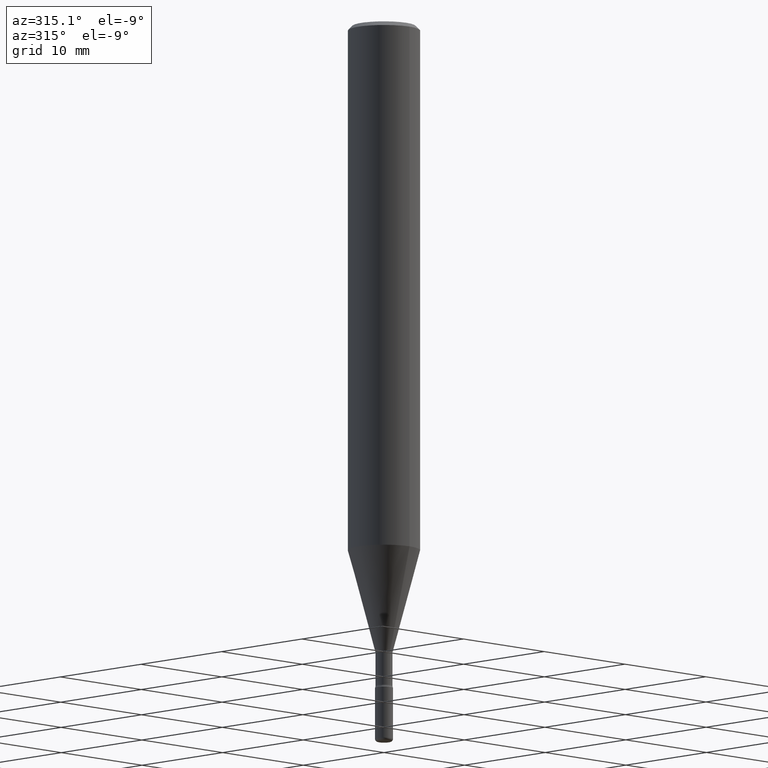
[diagram: clean part render]
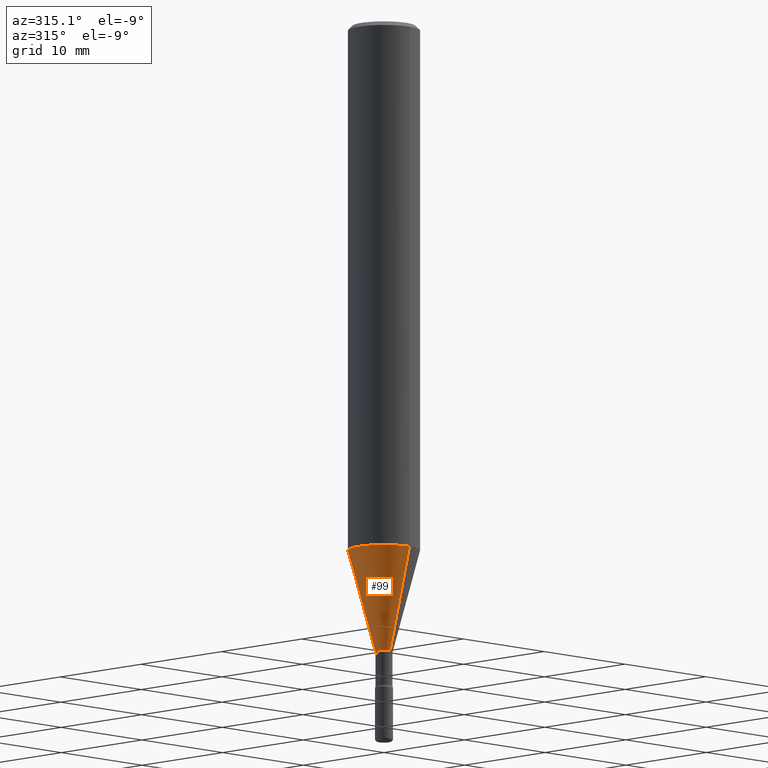
[diagram: same view with one face highlighted and labeled with its STEP entity id]
A machine part, auxiliary view. The second image highlights one B-rep face of the part: STEP entity #99.
In plain terms, the highlighted conical surface has half-angle 15 deg.
Its self-contained STEP definition (entity closure, byte-faithful):
#2 = DIRECTION ( 'NONE',  ( -2.445452788277100287E-29, 3.491504277399136299E-15, 1.000000000000000000 ) ) ;
#39 = FACE_OUTER_BOUND ( 'NONE', #291, .T. ) ;
#74 = VERTEX_POINT ( 'NONE', #264 ) ;
#75 = ORIENTED_EDGE ( 'NONE', *, *, #476, .F. ) ;
#81 = VERTEX_POINT ( 'NONE', #167 ) ;
#99 = ADVANCED_FACE ( 'NONE', ( #39 ), #270, .T. ) ;
#160 = AXIS2_PLACEMENT_3D ( 'NONE', #402, #2, #181 ) ;
#167 = CARTESIAN_POINT ( 'NONE',  ( -2.088681829733692852E-16, -0.02991111260567161020, -2.186092501787273434 ) ) ;
#181 = DIRECTION ( 'NONE',  ( -6.982962677686265922E-15, -1.000000000000000000, 4.370956789862821150E-15 ) ) ;
#188 = VECTOR ( 'NONE', #358, 39.37007874015748854 ) ;
#189 = LINE ( 'NONE', #232, #188 ) ;
#198 = VERTEX_POINT ( 'NONE', #539 ) ;
#210 = EDGE_CURVE ( 'NONE', #74, #81, #365, .T. ) ;
#218 = CARTESIAN_POINT ( 'NONE',  ( 5.345986003927349393E-29, -7.632751320780443550E-15, -2.186092501787273434 ) ) ;
#223 = DIRECTION ( 'NONE',  ( -6.982962677686265922E-15, -1.000000000000000000, 0.000000000000000000 ) ) ;
#226 = CARTESIAN_POINT ( 'NONE',  ( -2.088681829733692852E-16, -0.02991111260567161020, -2.186092501787273434 ) ) ;
#230 = CARTESIAN_POINT ( 'NONE',  ( -8.728703347107386696E-16, -0.1250000000000064115, -1.831215942796415863 ) ) ;
#232 = CARTESIAN_POINT ( 'NONE',  ( 2.125312378046224579E-16, 0.02991111260565634464, -2.186092501787273434 ) ) ;
#237 = VERTEX_POINT ( 'NONE', #230 ) ;
#264 = CARTESIAN_POINT ( 'NONE',  ( 5.503548287523965372E-16, 0.02991111260565634811, -2.186092501787273434 ) ) ;
#270 = CONICAL_SURFACE ( 'NONE', #455, 0.02991111260566397742, 0.2617993877991499629 ) ;
#280 = LINE ( 'NONE', #226, #543 ) ;
#288 = EDGE_CURVE ( 'NONE', #198, #237, #533, .T. ) ;
#291 = EDGE_LOOP ( 'NONE', ( #75, #559, #381, #437 ) ) ;
#322 = CARTESIAN_POINT ( 'NONE',  ( 5.345986003927349393E-29, -7.632751320780443550E-15, -2.186092501787273434 ) ) ;
#358 = DIRECTION ( 'NONE',  ( 1.839019923739597949E-15, 0.2588190451025246253, 0.9659258262890670910 ) ) ;
#365 = CIRCLE ( 'NONE', #387, 0.02991111260566397742 ) ;
#381 = ORIENTED_EDGE ( 'NONE', *, *, #422, .T. ) ;
#387 = AXIS2_PLACEMENT_3D ( 'NONE', #322, #495, #446 ) ;
#402 = CARTESIAN_POINT ( 'NONE',  ( 4.478152133248975156E-29, -6.393698297115179896E-15, -1.831215942796416307 ) ) ;
#422 = EDGE_CURVE ( 'NONE', #81, #237, #280, .T. ) ;
#437 = ORIENTED_EDGE ( 'NONE', *, *, #288, .F. ) ;
#446 = DIRECTION ( 'NONE',  ( -6.982962677686265922E-15, -1.000000000000000000, 0.000000000000000000 ) ) ;
#455 = AXIS2_PLACEMENT_3D ( 'NONE', #218, #486, #223 ) ;
#476 = EDGE_CURVE ( 'NONE', #74, #198, #189, .T. ) ;
#486 = DIRECTION ( 'NONE',  ( -2.445452788277100287E-29, 3.491504277399136299E-15, 1.000000000000000000 ) ) ;
#495 = DIRECTION ( 'NONE',  ( -2.445452788277100287E-29, 3.491504277399136299E-15, 1.000000000000000000 ) ) ;
#497 = DIRECTION ( 'NONE',  ( -1.807323732225328167E-15, -0.2588190451025179084, 0.9659258262890690894 ) ) ;
#533 = CIRCLE ( 'NONE', #160, 0.1250000000000000000 ) ;
#539 = CARTESIAN_POINT ( 'NONE',  ( 8.881784197001696058E-16, 0.1249999999999935746, -1.831215942796416973 ) ) ;
#543 = VECTOR ( 'NONE', #497, 39.37007874015748143 ) ;
#559 = ORIENTED_EDGE ( 'NONE', *, *, #210, .T. ) ;